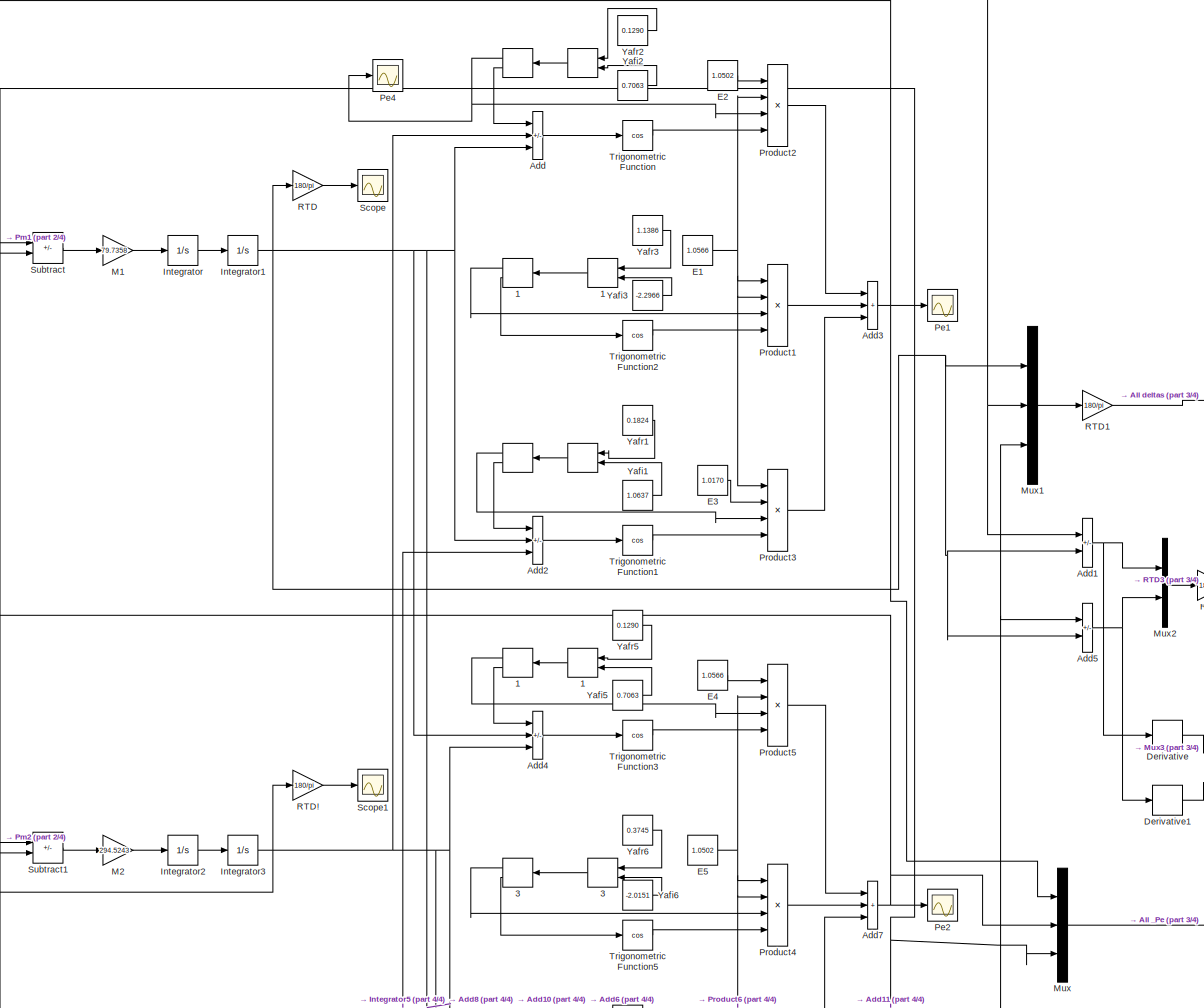
[diagram: root canvas - part 1/4, full width, top band]
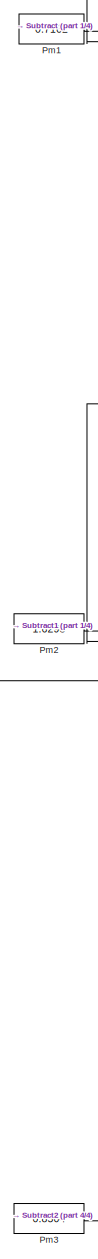
[diagram: root canvas - part 2/4, middle left region]
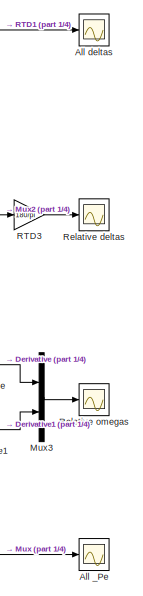
[diagram: root canvas - part 3/4, middle right region]
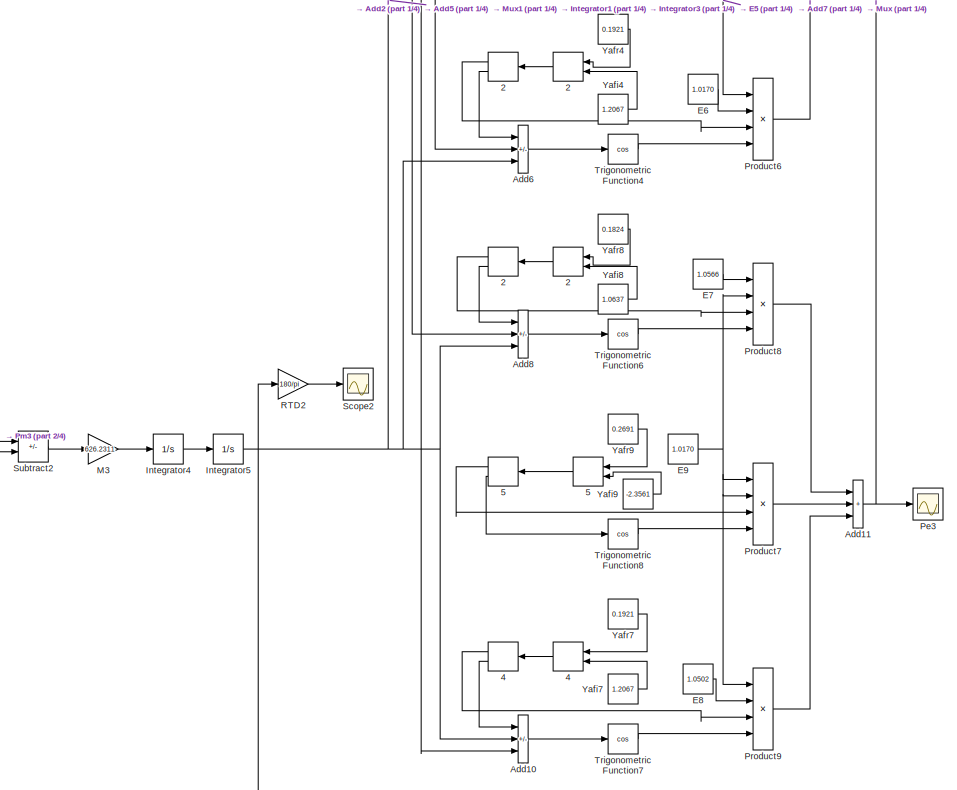
[diagram: root canvas - part 4/4, bottom center region]
MODEL slx_1ddcf7fcd50a
KIND model
CONFIG AbsTol = auto
CONFIG EnableMultiTasking = on
CONFIG FixedStep = auto
CONFIG MaxStep = auto
CONFIG MinStep = auto
CONFIG RelTol = 1e-3
CONFIG SampleTimeConstraint = Unconstrained
CONFIG Solver = ode45
CONFIG SolverName = ode45
CONFIG StartTime = 0.0
CONFIG StopTime = 1
BLOCK [RealImagToComplex]  
  NameLocation = top
  Ports = [2, 1]
BLOCK [ComplexToMagnitudeAngle]  1
  NameLocation = top
  Ports = [1, 2]
BLOCK [ComplexToMagnitudeAngle]  2
  NameLocation = top
  Ports = [1, 2]
BLOCK [ComplexToMagnitudeAngle]  3
  NameLocation = top
  Ports = [1, 2]
BLOCK [ComplexToMagnitudeAngle]  4
  NameLocation = top
  Ports = [1, 2]
BLOCK [ComplexToMagnitudeAngle]  5
  NameLocation = top
  Ports = [1, 2]
BLOCK [Sum] Add
  IconShape = rectangular
  Inputs = ++-
  Ports = [3, 1]
BLOCK [Sum] Add1
  IconShape = rectangular
  Inputs = +-
  Ports = [2, 1]
BLOCK [Sum] Add10
  IconShape = rectangular
  Inputs = +-+
  Ports = [3, 1]
BLOCK [Sum] Add11
  IconShape = rectangular
  Inputs = +++
  Ports = [3, 1]
BLOCK [Sum] Add2
  IconShape = rectangular
  Inputs = +-+
  Ports = [3, 1]
BLOCK [Sum] Add3
  IconShape = rectangular
  Inputs = +++
  Ports = [3, 1]
BLOCK [Sum] Add4
  IconShape = rectangular
  Inputs = ++-
  Ports = [3, 1]
BLOCK [Sum] Add5
  IconShape = rectangular
  Inputs = +-
  Ports = [2, 1]
BLOCK [Sum] Add6
  IconShape = rectangular
  Inputs = +-+
  Ports = [3, 1]
BLOCK [Sum] Add7
  IconShape = rectangular
  Inputs = +++
  Ports = [3, 1]
BLOCK [Sum] Add8
  IconShape = rectangular
  Inputs = ++-
  Ports = [3, 1]
BLOCK [Scope] All _Pe
  Floating = off
  NumInputPorts = 1
  Ports = [1]
  ScopeSpecificationString = C++SS(StrPVP('Location','[5, 49, 1371, 727]'),StrPVP('Open','off'),MxPVP('AxesTitles',54,'struct(''axes1'',''%<SignalLabel>'')'),MxPVP('ScopeGraphics',57,'struct(''FigureColor'',''[0.5 0.5 0.5]'',''AxesColor'',''[0 0 0]'',''AxesTickColor'',''[1 1 1]'',''LineColors'',''[1 1 0;1 0 1;0 1 1;1 0 0;0 1 0;0 0 1]'',''LineStyles'',''-|-|-|-|-|-'',''LineWidths'',''[0.5 0.5 0.5 0.5 0.5 0.5]'',''MarkerStyles'...<+222ch>
BLOCK [Scope] All deltas
  Floating = off
  NumInputPorts = 1
  Ports = [1]
  ScopeSpecificationString = Simulink.scopes.TimeScopeBlockCfg('CurrentConfiguration', extmgr.ConfigurationSet(extmgr.Configuration('Core','General UI',true),extmgr.Configuration('Core','Source UI',true),extmgr.Configuration('Sources','WiredSimulink',true,'DataLoggingVariableName','ScopeData8','DataLoggingLimitDataPoints',true,'DataLoggingSaveFormat','Array','DataLoggingDecimation','1','DataLoggingDecimateData',true),extmgr.C...<+1691ch>
BLOCK [Derivative] Derivative
BLOCK [Derivative] Derivative1
BLOCK [Constant] E1
  Value = 1.0566
BLOCK [Constant] E2
  Value = 1.0502
BLOCK [Constant] E3
  Value = 1.0170
BLOCK [Constant] E4
  Value = 1.0566
BLOCK [Constant] E5
  Value = 1.0502
BLOCK [Constant] E6
  Value = 1.0170
BLOCK [Constant] E7
  Value = 1.0566
BLOCK [Constant] E8
  Value = 1.0502
BLOCK [Constant] E9
  Value = 1.0170
BLOCK [Integrator] Integrator
  Ports = [1, 1]
BLOCK [Integrator] Integrator1
  Ports = [1, 1]
BLOCK [Integrator] Integrator2
  Ports = [1, 1]
BLOCK [Integrator] Integrator3
  Ports = [1, 1]
BLOCK [Integrator] Integrator4
  Ports = [1, 1]
BLOCK [Integrator] Integrator5
  Ports = [1, 1]
BLOCK [Gain] M1
  Gain = 79.7358
BLOCK [Gain] M2
  Gain = 294.5243
BLOCK [Gain] M3
  Gain = 626.2311
BLOCK [Mux] Mux
  DisplayOption = bar
  Inputs = 3
  Ports = [3, 1]
BLOCK [Mux] Mux1
  DisplayOption = bar
  Inputs = 3
  Ports = [3, 1]
BLOCK [Mux] Mux2
  DisplayOption = bar
  Inputs = 2
  Ports = [2, 1]
BLOCK [Mux] Mux3
  DisplayOption = bar
  Inputs = 2
  Ports = [2, 1]
BLOCK [Scope] Pe1
  Floating = off
  NumInputPorts = 1
  Ports = [1]
  ScopeSpecificationString = C++SS(StrPVP('Location','[1, 49, 1367, 727]'),StrPVP('Open','off'),MxPVP('AxesTitles',54,'struct(''axes1'',''%<SignalLabel>'')'),MxPVP('ScopeGraphics',57,'struct(''FigureColor'',''[0.5 0.5 0.5]'',''AxesColor'',''[0 0 0]'',''AxesTickColor'',''[1 1 1]'',''LineColors'',''[1 1 0;1 0 1;0 1 1;1 0 0;0 1 0;0 0 1]'',''LineStyles'',''-|-|-|-|-|-'',''LineWidths'',''[0.5 0.5 0.5 0.5 0.5 0.5]'',''MarkerStyles'...<+222ch>
BLOCK [Scope] Pe2
  Floating = off
  NumInputPorts = 1
  Ports = [1]
  ScopeSpecificationString = C++SS(StrPVP('Location','[188, 365, 512, 604]'),StrPVP('Open','off'),MxPVP('AxesTitles',54,'struct(''axes1'',''%<SignalLabel>'')'),MxPVP('ScopeGraphics',57,'struct(''FigureColor'',''[0.5 0.5 0.5]'',''AxesColor'',''[0 0 0]'',''AxesTickColor'',''[1 1 1]'',''LineColors'',''[1 1 0;1 0 1;0 1 1;1 0 0;0 1 0;0 0 1]'',''LineStyles'',''-|-|-|-|-|-'',''LineWidths'',''[0.5 0.5 0.5 0.5 0.5 0.5]'',''MarkerStyle...<+224ch>  <repeated x3 — deduplicated; at blocks: Pe2, Pe3, Pe4>
BLOCK [Scope] Pe3
  Floating = off
  NumInputPorts = 1
  Ports = [1]
BLOCK [Scope] Pe4
  Floating = off
  NumInputPorts = 1
  Ports = [1]
BLOCK [Constant] Pm1
  Value = 0.7162
BLOCK [Constant] Pm2
  Value = 1.6298
BLOCK [Constant] Pm3
  Value = 0.8504
BLOCK [Product] Product1
  Inputs = 4
  Ports = [4, 1]
BLOCK [Product] Product2
  Inputs = 4
  Ports = [4, 1]
BLOCK [Product] Product3
  Inputs = 4
  Ports = [4, 1]
BLOCK [Product] Product4
  Inputs = 4
  Ports = [4, 1]
BLOCK [Product] Product5
  Inputs = 4
  Ports = [4, 1]
BLOCK [Product] Product6
  Inputs = 4
  Ports = [4, 1]
BLOCK [Product] Product7
  Inputs = 4
  Ports = [4, 1]
BLOCK [Product] Product8
  Inputs = 4
  Ports = [4, 1]
BLOCK [Product] Product9
  Inputs = 4
  Ports = [4, 1]
BLOCK [Gain] RTD
  Gain = 180/pi
BLOCK [Gain] RTD!
  Gain = 180/pi
BLOCK [Gain] RTD1
  Gain = 180/pi
BLOCK [Gain] RTD2
  Gain = 180/pi
BLOCK [Gain] RTD3
  Gain = 180/pi
BLOCK [Scope] Relative deltas
  Floating = off
  NumInputPorts = 1
  Ports = [1]
  ScopeSpecificationString = C++SS(StrPVP('Location','[5, 49, 1371, 727]'),StrPVP('Open','off'),MxPVP('AxesTitles',54,'struct(''axes1'',''%<SignalLabel>'')'),MxPVP('ScopeGraphics',57,'struct(''FigureColor'',''[0.5 0.5 0.5]'',''AxesColor'',''[0 0 0]'',''AxesTickColor'',''[1 1 1]'',''LineColors'',''[1 1 0;1 0 1;0 1 1;1 0 0;0 1 0;0 0 1]'',''LineStyles'',''-|-|-|-|-|-'',''LineWidths'',''[0.5 0.5 0.5 0.5 0.5 0.5]'',''MarkerStyles'...<+222ch>
BLOCK [Scope] Relative omegas 
  Floating = off
  NumInputPorts = 1
  Ports = [1]
  ScopeSpecificationString = C++SS(StrPVP('Location','[5, 49, 1371, 727]'),StrPVP('Open','off'),MxPVP('AxesTitles',54,'struct(''axes1'',''%<SignalLabel>'')'),MxPVP('ScopeGraphics',57,'struct(''FigureColor'',''[0.5 0.5 0.5]'',''AxesColor'',''[0 0 0]'',''AxesTickColor'',''[1 1 1]'',''LineColors'',''[1 1 0;1 0 1;0 1 1;1 0 0;0 1 0;0 0 1]'',''LineStyles'',''-|-|-|-|-|-'',''LineWidths'',''[0.5 0.5 0.5 0.5 0.5 0.5]'',''MarkerStyles'...<+223ch>
BLOCK [Scope] Scope
  Floating = off
  NumInputPorts = 1
  Ports = [1]
  ScopeSpecificationString = C++SS(StrPVP('Location','[1, 49, 1367, 727]'),StrPVP('Open','off'),MxPVP('AxesTitles',54,'struct(''axes1'',''%<SignalLabel>'')'),MxPVP('ScopeGraphics',57,'struct(''FigureColor'',''[0.5 0.5 0.5]'',''AxesColor'',''[0 0 0]'',''AxesTickColor'',''[1 1 1]'',''LineColors'',''[1 1 0;1 0 1;0 1 1;1 0 0;0 1 0;0 0 1]'',''LineStyles'',''-|-|-|-|-|-'',''LineWidths'',''[0.5 0.5 0.5 0.5 0.5 0.5]'',''MarkerStyles'...<+190ch>
BLOCK [Scope] Scope1
  Floating = off
  NumInputPorts = 1
  Ports = [1]
  ScopeSpecificationString = C++SS(StrPVP('Location','[753, 370, 1077, 609]'),StrPVP('Open','off'),MxPVP('AxesTitles',54,'struct(''axes1'',''%<SignalLabel>'')'),MxPVP('ScopeGraphics',57,'struct(''FigureColor'',''[0.5 0.5 0.5]'',''AxesColor'',''[0 0 0]'',''AxesTickColor'',''[1 1 1]'',''LineColors'',''[1 1 0;1 0 1;0 1 1;1 0 0;0 1 0;0 0 1]'',''LineStyles'',''-|-|-|-|-|-'',''LineWidths'',''[0.5 0.5 0.5 0.5 0.5 0.5]'',''MarkerStyl...<+225ch>
BLOCK [Scope] Scope2
  Floating = off
  NumInputPorts = 1
  Ports = [1]
  ScopeSpecificationString = C++SS(StrPVP('Location','[452, 99, 776, 338]'),StrPVP('Open','off'),MxPVP('AxesTitles',54,'struct(''axes1'',''%<SignalLabel>'')'),MxPVP('ScopeGraphics',57,'struct(''FigureColor'',''[0.5 0.5 0.5]'',''AxesColor'',''[0 0 0]'',''AxesTickColor'',''[1 1 1]'',''LineColors'',''[1 1 0;1 0 1;0 1 1;1 0 0;0 1 0;0 0 1]'',''LineStyles'',''-|-|-|-|-|-'',''LineWidths'',''[0.5 0.5 0.5 0.5 0.5 0.5]'',''MarkerStyles...<+223ch>
BLOCK [Sum] Subtract
  IconShape = rectangular
  Inputs = +-
  Ports = [2, 1]
BLOCK [Sum] Subtract1
  IconShape = rectangular
  Inputs = +-
  Ports = [2, 1]
BLOCK [Sum] Subtract2
  IconShape = rectangular
  Inputs = +-
  Ports = [2, 1]
BLOCK [Trigonometry] Trigonometric Function
  Operator = cos
  Ports = [1, 1]
BLOCK [Trigonometry] Trigonometric Function1
  Operator = cos
  Ports = [1, 1]
BLOCK [Trigonometry] Trigonometric Function2
  Operator = cos
  Ports = [1, 1]
BLOCK [Trigonometry] Trigonometric Function3
  Operator = cos
  Ports = [1, 1]
BLOCK [Trigonometry] Trigonometric Function4
  Operator = cos
  Ports = [1, 1]
BLOCK [Trigonometry] Trigonometric Function5
  Operator = cos
  Ports = [1, 1]
BLOCK [Trigonometry] Trigonometric Function6
  Operator = cos
  Ports = [1, 1]
BLOCK [Trigonometry] Trigonometric Function7
  Operator = cos
  Ports = [1, 1]
BLOCK [Trigonometry] Trigonometric Function8
  Operator = cos
  Ports = [1, 1]
BLOCK [Constant] Yafi1
  Value = 1.0637
BLOCK [Constant] Yafi2
  Value = 0.7063
BLOCK [Constant] Yafi3
  Value = -2.2966
BLOCK [Constant] Yafi4
  Value = 1.2067
BLOCK [Constant] Yafi5
  Value = 0.7063
BLOCK [Constant] Yafi6
  Value = -2.0151
BLOCK [Constant] Yafi7
  Value = 1.2067
BLOCK [Constant] Yafi8
  Value = 1.0637
BLOCK [Constant] Yafi9
  Value = -2.3561
BLOCK [Constant] Yafr1
  Value = 0.1824
BLOCK [Constant] Yafr2
  Value = 0.1290
BLOCK [Constant] Yafr3
  Value = 1.1386
BLOCK [Constant] Yafr4
  Value = 0.1921
BLOCK [Constant] Yafr5
  Value = 0.1290
BLOCK [Constant] Yafr6
  Value = 0.3745
BLOCK [Constant] Yafr7
  Value = 0.1921
BLOCK [Constant] Yafr8
  Value = 0.1824
BLOCK [Constant] Yafr9
  Value = 0.2691
NET  1:1 ->  1:1, Product1:3, Product5:3
NET  1:2 -> Add4:1, Trigonometric Function2:1
NET  2:1 ->  2:1, Product6:3, Product8:3
NET  2:2 -> Add6:1, Add8:1
NET  3:1 ->  3:1, Product4:3
LINE  3:2 -> Trigonometric Function5:1
NET  4:1 ->  4:1, Product9:3
LINE  4:2 -> Add10:1
NET  5:1 ->  5:1, Product7:3
LINE  5:2 -> Trigonometric Function8:1
NET  :1 ->  :1, Pe4:1, Product2:3, Product3:3
NET  :2 -> Add2:1, Add:1
LINE Add10:1 -> Trigonometric Function7:1
NET Add11:1 -> Mux:3, Pe3:1, Subtract2:2
NET Add1:1 -> Derivative:1, Mux2:1
LINE Add2:1 -> Trigonometric Function1:1
NET Add3:1 -> Mux:1, Pe1:1, Subtract:2
LINE Add4:1 -> Trigonometric Function3:1
NET Add5:1 -> Derivative1:1, Mux2:2
LINE Add6:1 -> Trigonometric Function4:1
NET Add7:1 -> Mux:2, Pe2:1, Subtract1:2
LINE Add8:1 -> Trigonometric Function6:1
LINE Add:1 -> Trigonometric Function:1
LINE Derivative1:1 -> Mux3:2
LINE Derivative:1 -> Mux3:1
NET E1:1 -> Product1:1, Product1:2, Product2:2, Product3:1
LINE E2:1 -> Product2:1
LINE E3:1 -> Product3:2
LINE E4:1 -> Product5:1
NET E5:1 -> Product4:1, Product4:2, Product5:2, Product6:1
LINE E6:1 -> Product6:2
LINE E7:1 -> Product8:1
LINE E8:1 -> Product9:2
NET E9:1 -> Product7:1, Product7:2, Product8:2, Product9:1
NET Integrator1:1 -> Add1:2, Add2:2, Add4:2, Add5:2, Add8:2, Add:3, Mux1:1, RTD:1
LINE Integrator2:1 -> Integrator3:1
NET Integrator3:1 -> Add10:3, Add1:1, Add4:3, Add6:2, Add:2, Mux1:2, RTD!:1
LINE Integrator4:1 -> Integrator5:1
NET Integrator5:1 -> Add10:2, Add2:3, Add5:1, Add6:3, Add8:3, Mux1:3, RTD2:1
LINE Integrator:1 -> Integrator1:1
LINE M1:1 -> Integrator:1
LINE M2:1 -> Integrator2:1
LINE M3:1 -> Integrator4:1
LINE Mux1:1 -> RTD1:1
LINE Mux2:1 -> RTD3:1
LINE Mux3:1 -> Relative omegas :1
LINE Mux:1 -> All _Pe:1
LINE Pm1:1 -> Subtract:1
LINE Pm2:1 -> Subtract1:1
LINE Pm3:1 -> Subtract2:1
LINE Product1:1 -> Add3:2
LINE Product2:1 -> Add3:1
LINE Product3:1 -> Add3:3
LINE Product4:1 -> Add7:2
LINE Product5:1 -> Add7:1
LINE Product6:1 -> Add7:3
LINE Product7:1 -> Add11:2
LINE Product8:1 -> Add11:1
LINE Product9:1 -> Add11:3
LINE RTD!:1 -> Scope1:1
LINE RTD1:1 -> All deltas:1
LINE RTD2:1 -> Scope2:1
LINE RTD3:1 -> Relative deltas:1
LINE RTD:1 -> Scope:1
LINE Subtract1:1 -> M2:1
LINE Subtract2:1 -> M3:1
LINE Subtract:1 -> M1:1
LINE Trigonometric Function1:1 -> Product3:4
LINE Trigonometric Function2:1 -> Product1:4
LINE Trigonometric Function3:1 -> Product5:4
LINE Trigonometric Function4:1 -> Product6:4
LINE Trigonometric Function5:1 -> Product4:4
LINE Trigonometric Function6:1 -> Product8:4
LINE Trigonometric Function7:1 -> Product9:4
LINE Trigonometric Function8:1 -> Product7:4
LINE Trigonometric Function:1 -> Product2:4
LINE Yafi1:1 ->  :2
LINE Yafi2:1 ->  :2
LINE Yafi3:1 ->  1:2
LINE Yafi4:1 ->  2:2
LINE Yafi5:1 ->  1:2
LINE Yafi6:1 ->  3:2
LINE Yafi7:1 ->  4:2
LINE Yafi8:1 ->  2:2
LINE Yafi9:1 ->  5:2
LINE Yafr1:1 ->  :1
LINE Yafr2:1 ->  :1
LINE Yafr3:1 ->  1:1
LINE Yafr4:1 ->  2:1
LINE Yafr5:1 ->  1:1
LINE Yafr6:1 ->  3:1
LINE Yafr7:1 ->  4:1
LINE Yafr8:1 ->  2:1
LINE Yafr9:1 ->  5:1
note: NET lines group one-source signal fan-out (src -> all destinations, sorted); 1:1 wires keep LINE
